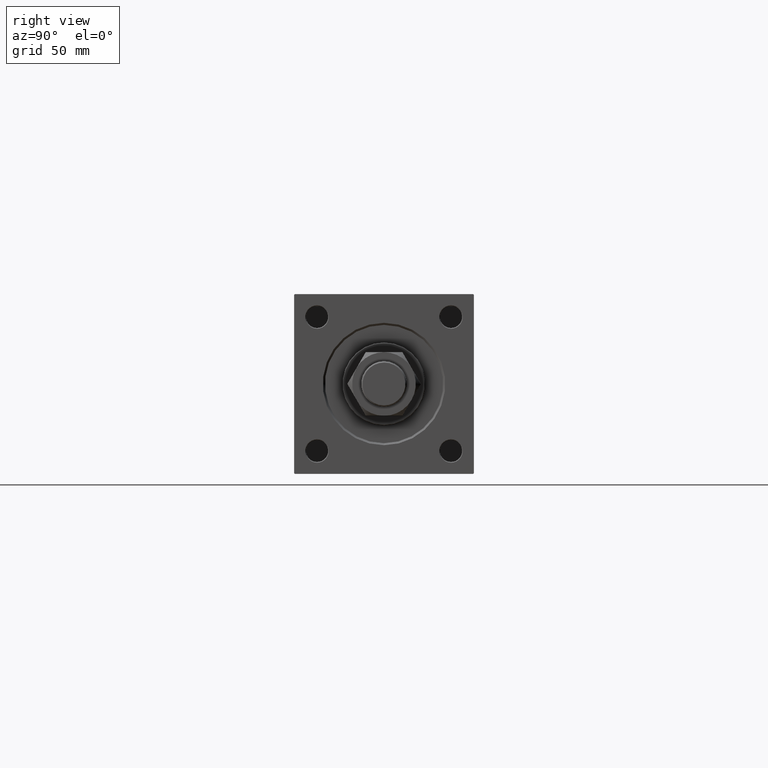
[diagram: clean part render]
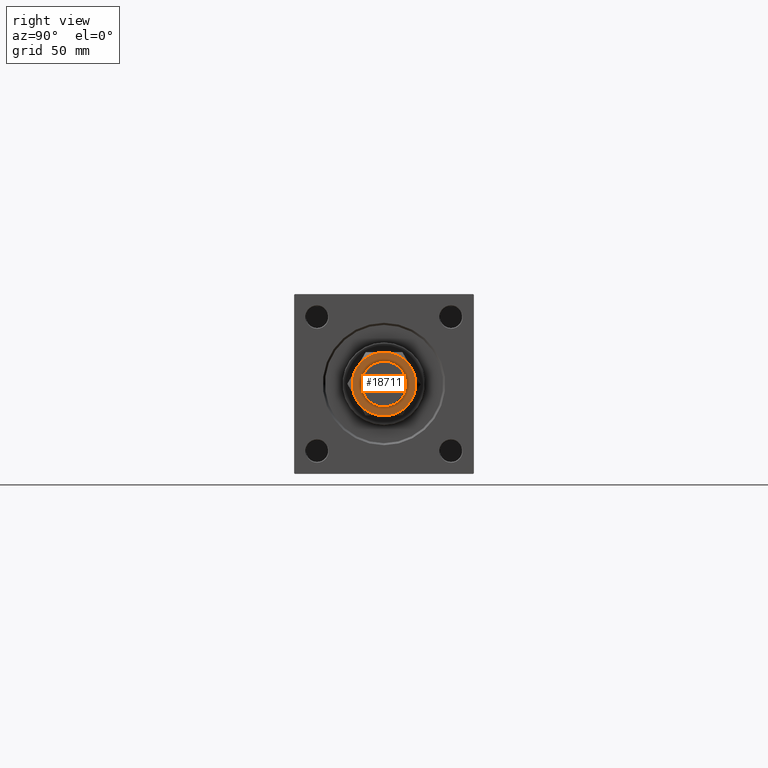
[diagram: same view with one face highlighted and labeled with its STEP entity id]
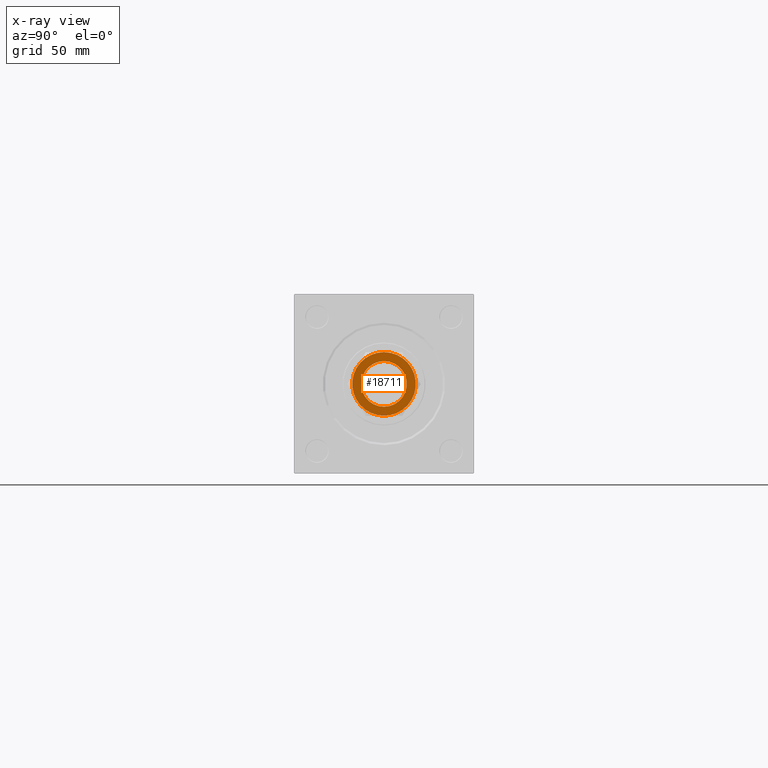
[diagram: x-ray of the same camera — body ghosted, the highlighted face saturated]
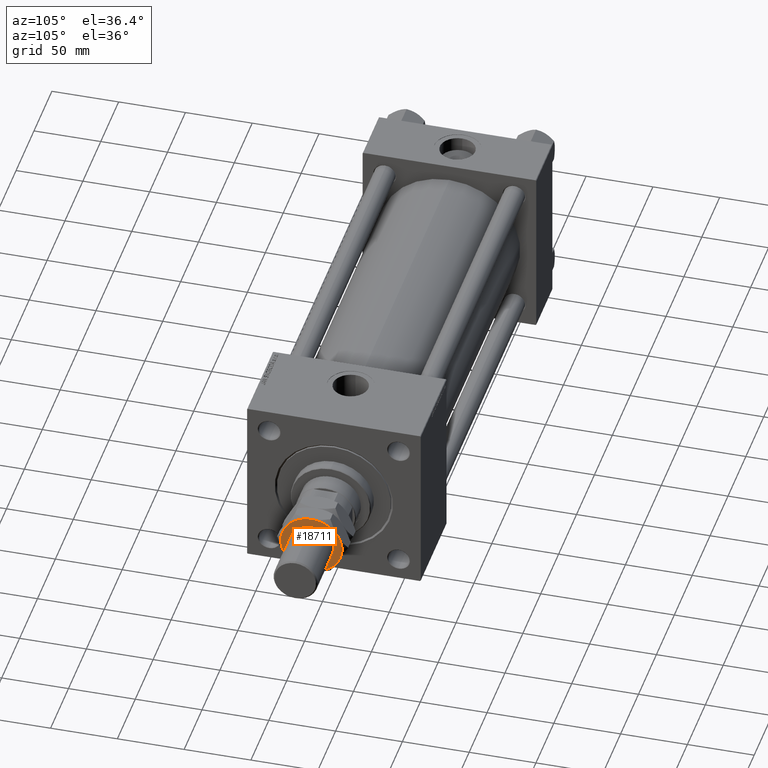
[diagram: same view with one face highlighted and labeled with its STEP entity id]
A machine part, right view. The second image highlights one B-rep face of the part: STEP entity #18711.
The next image is the same camera in x-ray: the body ghosted, the highlighted face saturated — about 0% of this face is hidden behind the body in this view.
A second angle (auxiliary view) of the same face is appended — the face is thin or edge-on in the first view.
In plain terms, the highlighted planar face has unit normal (1, 0, 0).
Its self-contained STEP definition (entity closure, byte-faithful):
#304 = DIRECTION ( 'NONE',  ( -0.000000000000000000, -0.000000000000000000, -1.000000000000000000 ) ) ;
#320 = CIRCLE ( 'NONE', #3721, 22.99999999999999645 ) ;
#386 = DIRECTION ( 'NONE',  ( 0.000000000000000000, 0.000000000000000000, 1.000000000000000000 ) ) ;
#760 = CIRCLE ( 'NONE', #14295, 22.99999999999999645 ) ;
#1501 = CARTESIAN_POINT ( 'NONE',  ( -16.50000000000000000, 2.020667218593133100E-15, 28.00000000000000000 ) ) ;
#2165 = DIRECTION ( 'NONE',  ( 0.000000000000000000, 0.000000000000000000, 1.000000000000000000 ) ) ;
#3008 = FACE_OUTER_BOUND ( 'NONE', #8405, .T. ) ;
#3116 = CIRCLE ( 'NONE', #21753, 22.99999999999999645 ) ;
#3265 = DIRECTION ( 'NONE',  ( 0.000000000000000000, 0.000000000000000000, 1.000000000000000000 ) ) ;
#3465 = CARTESIAN_POINT ( 'NONE',  ( 11.49999999999999822, 19.91858428704208706, 28.00000000000000000 ) ) ;
#3505 = DIRECTION ( 'NONE',  ( 1.000000000000000000, 0.000000000000000000, 0.000000000000000000 ) ) ;
#3554 = ORIENTED_EDGE ( 'NONE', *, *, #52056, .T. ) ;
#3721 = AXIS2_PLACEMENT_3D ( 'NONE', #48365, #28515, #4704 ) ;
#4330 = ORIENTED_EDGE ( 'NONE', *, *, #39400, .T. ) ;
#4704 = DIRECTION ( 'NONE',  ( 1.000000000000000000, 0.000000000000000000, 0.000000000000000000 ) ) ;
#5226 = VERTEX_POINT ( 'NONE', #6152 ) ;
#6077 = ORIENTED_EDGE ( 'NONE', *, *, #41404, .T. ) ;
#6152 = CARTESIAN_POINT ( 'NONE',  ( 16.50000000000000000, 0.000000000000000000, 28.00000000000000000 ) ) ;
#6305 = ORIENTED_EDGE ( 'NONE', *, *, #40043, .T. ) ;
#6566 = AXIS2_PLACEMENT_3D ( 'NONE', #45094, #386, #17591 ) ;
#7428 = AXIS2_PLACEMENT_3D ( 'NONE', #23333, #11670, #36545 ) ;
#7570 = DIRECTION ( 'NONE',  ( 0.000000000000000000, 0.000000000000000000, 1.000000000000000000 ) ) ;
#8405 = EDGE_LOOP ( 'NONE', ( #10343, #4330, #36554, #6305, #9083, #21690 ) ) ;
#9083 = ORIENTED_EDGE ( 'NONE', *, *, #36558, .T. ) ;
#10343 = ORIENTED_EDGE ( 'NONE', *, *, #24377, .T. ) ;
#10944 = PLANE ( 'NONE',  #51367 ) ;
#11075 = VERTEX_POINT ( 'NONE', #3465 ) ;
#11213 = AXIS2_PLACEMENT_3D ( 'NONE', #30475, #26749, #46608 ) ;
#11275 = DIRECTION ( 'NONE',  ( 1.000000000000000000, 0.000000000000000000, 0.000000000000000000 ) ) ;
#11454 = DIRECTION ( 'NONE',  ( 0.000000000000000000, 0.000000000000000000, 1.000000000000000000 ) ) ;
#11670 = DIRECTION ( 'NONE',  ( -0.000000000000000000, -0.000000000000000000, -1.000000000000000000 ) ) ;
#12479 = CARTESIAN_POINT ( 'NONE',  ( -11.49999999999999822, 19.91858428704208706, 28.00000000000000000 ) ) ;
#12743 = VERTEX_POINT ( 'NONE', #28075 ) ;
#14295 = AXIS2_PLACEMENT_3D ( 'NONE', #50842, #2165, #22821 ) ;
#16452 = DIRECTION ( 'NONE',  ( 1.000000000000000000, 0.000000000000000000, 0.000000000000000000 ) ) ;
#17591 = DIRECTION ( 'NONE',  ( 1.000000000000000000, 0.000000000000000000, 0.000000000000000000 ) ) ;
#18711 = ADVANCED_FACE ( 'NONE', ( #47200, #3008 ), #10944, .T. ) ;
#19415 = DIRECTION ( 'NONE',  ( 1.000000000000000000, 0.000000000000000000, -0.000000000000000000 ) ) ;
#21300 = CIRCLE ( 'NONE', #11213, 22.99999999999999645 ) ;
#21690 = ORIENTED_EDGE ( 'NONE', *, *, #44864, .T. ) ;
#21753 = AXIS2_PLACEMENT_3D ( 'NONE', #35554, #11454, #3505 ) ;
#22821 = DIRECTION ( 'NONE',  ( 1.000000000000000000, 0.000000000000000000, 0.000000000000000000 ) ) ;
#23333 = CARTESIAN_POINT ( 'NONE',  ( 0.000000000000000000, 0.000000000000000000, 28.00000000000000000 ) ) ;
#23386 = CARTESIAN_POINT ( 'NONE',  ( 0.000000000000000000, 0.000000000000000000, 28.00000000000000000 ) ) ;
#24212 = VERTEX_POINT ( 'NONE', #1501 ) ;
#24377 = EDGE_CURVE ( 'NONE', #43724, #41389, #21300, .T. ) ;
#26410 = AXIS2_PLACEMENT_3D ( 'NONE', #28611, #304, #16452 ) ;
#26749 = DIRECTION ( 'NONE',  ( 0.000000000000000000, 0.000000000000000000, 1.000000000000000000 ) ) ;
#27824 = VERTEX_POINT ( 'NONE', #47080 ) ;
#27909 = EDGE_CURVE ( 'NONE', #11075, #52102, #320, .T. ) ;
#28075 = CARTESIAN_POINT ( 'NONE',  ( -11.50000000000000533, -19.91858428704208706, 28.00000000000000000 ) ) ;
#28515 = DIRECTION ( 'NONE',  ( 0.000000000000000000, 0.000000000000000000, 1.000000000000000000 ) ) ;
#28611 = CARTESIAN_POINT ( 'NONE',  ( 0.000000000000000000, 0.000000000000000000, 28.00000000000000000 ) ) ;
#30475 = CARTESIAN_POINT ( 'NONE',  ( 0.000000000000000000, 0.000000000000000000, 28.00000000000000000 ) ) ;
#31145 = CARTESIAN_POINT ( 'NONE',  ( 0.000000000000000000, 0.000000000000000000, 28.00000000000000000 ) ) ;
#34073 = EDGE_LOOP ( 'NONE', ( #6077, #3554 ) ) ;
#34485 = CIRCLE ( 'NONE', #7428, 16.50000000000000000 ) ;
#35052 = CARTESIAN_POINT ( 'NONE',  ( 11.50000000000000533, -19.91858428704207995, 28.00000000000000000 ) ) ;
#35554 = CARTESIAN_POINT ( 'NONE',  ( 0.000000000000000000, 0.000000000000000000, 28.00000000000000000 ) ) ;
#36545 = DIRECTION ( 'NONE',  ( 1.000000000000000000, 0.000000000000000000, 0.000000000000000000 ) ) ;
#36554 = ORIENTED_EDGE ( 'NONE', *, *, #27909, .T. ) ;
#36558 = EDGE_CURVE ( 'NONE', #27824, #12743, #49529, .T. ) ;
#39387 = AXIS2_PLACEMENT_3D ( 'NONE', #31145, #7570, #11275 ) ;
#39400 = EDGE_CURVE ( 'NONE', #41389, #11075, #3116, .T. ) ;
#39726 = CARTESIAN_POINT ( 'NONE',  ( 22.99999999999999645, 0.000000000000000000, 28.00000000000000000 ) ) ;
#40043 = EDGE_CURVE ( 'NONE', #52102, #27824, #43729, .T. ) ;
#41389 = VERTEX_POINT ( 'NONE', #39726 ) ;
#41404 = EDGE_CURVE ( 'NONE', #5226, #24212, #34485, .T. ) ;
#43724 = VERTEX_POINT ( 'NONE', #35052 ) ;
#43729 = CIRCLE ( 'NONE', #6566, 22.99999999999999645 ) ;
#44864 = EDGE_CURVE ( 'NONE', #12743, #43724, #760, .T. ) ;
#45094 = CARTESIAN_POINT ( 'NONE',  ( 0.000000000000000000, 0.000000000000000000, 28.00000000000000000 ) ) ;
#46608 = DIRECTION ( 'NONE',  ( 1.000000000000000000, 0.000000000000000000, 0.000000000000000000 ) ) ;
#47080 = CARTESIAN_POINT ( 'NONE',  ( -22.99999999999999645, 0.000000000000000000, 28.00000000000000000 ) ) ;
#47200 = FACE_BOUND ( 'NONE', #34073, .T. ) ;
#48365 = CARTESIAN_POINT ( 'NONE',  ( 0.000000000000000000, 0.000000000000000000, 28.00000000000000000 ) ) ;
#49529 = CIRCLE ( 'NONE', #39387, 22.99999999999999645 ) ;
#50065 = CIRCLE ( 'NONE', #26410, 16.50000000000000000 ) ;
#50842 = CARTESIAN_POINT ( 'NONE',  ( 0.000000000000000000, 0.000000000000000000, 28.00000000000000000 ) ) ;
#51367 = AXIS2_PLACEMENT_3D ( 'NONE', #23386, #3265, #19415 ) ;
#52056 = EDGE_CURVE ( 'NONE', #24212, #5226, #50065, .T. ) ;
#52102 = VERTEX_POINT ( 'NONE', #12479 ) ;